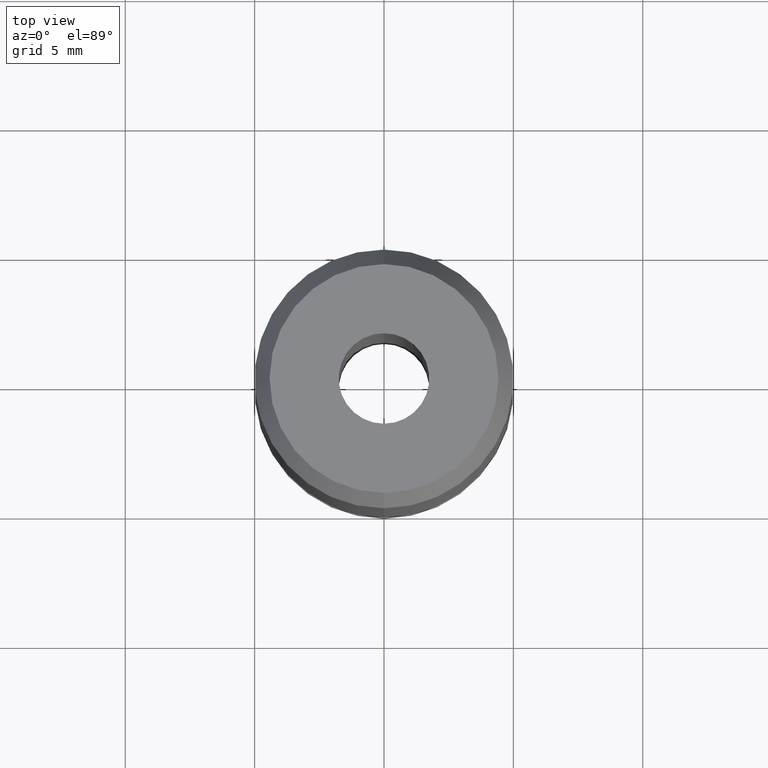
[diagram: clean part render]
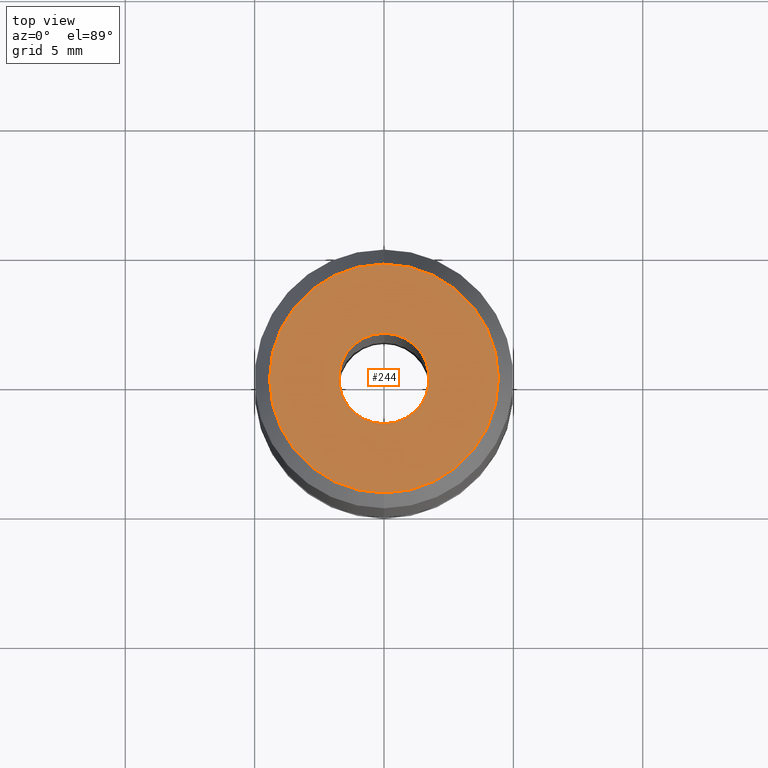
[diagram: same view with one face highlighted and labeled with its STEP entity id]
A machine part, top view. The second image highlights one B-rep face of the part: STEP entity #244.
In plain terms, the highlighted planar face has unit normal (0, -0, 1).
Its self-contained STEP definition (entity closure, byte-faithful):
#102=VERTEX_POINT('NONE',#272);
#182=EDGE_CURVE('NONE',#216,#250,#362,.T.);
#206=EDGE_CURVE('NONE',#102,#236,#391,.T.);
#216=VERTEX_POINT('NONE',#402);
#232=EDGE_CURVE('NONE',#236,#102,#420,.T.);
#236=VERTEX_POINT('NONE',#424);
#238=EDGE_CURVE('NONE',#250,#216,#426,.T.);
#244=ADVANCED_FACE('NONE',(#433,#434),#435,.T.);
#250=VERTEX_POINT('NONE',#441);
#272=CARTESIAN_POINT('',(-2.14306111918916E-016,1.75,24.5));
#362=CIRCLE('',#572,4.42264973081037);
#391=CIRCLE('',#607,1.75);
#402=CARTESIAN_POINT('',(-5.76951836509654E-016,4.42264973081037,24.5));
#420=CIRCLE('',#644,1.75);
#424=CARTESIAN_POINT('',(0.0,-1.75,24.5));
#426=CIRCLE('',#653,4.42264973081037);
#433=FACE_OUTER_BOUND('',#661,.T.);
#434=FACE_BOUND('',#662,.T.);
#435=PLANE('',#663);
#441=CARTESIAN_POINT('',(0.0,-4.42264973081037,24.5));
#572=AXIS2_PLACEMENT_3D('',#785,#786,#787);
#607=AXIS2_PLACEMENT_3D('',#830,#831,#832);
#644=AXIS2_PLACEMENT_3D('',#868,#869,#870);
#653=AXIS2_PLACEMENT_3D('',#872,#873,#874);
#661=EDGE_LOOP('',(#887,#888));
#662=EDGE_LOOP('',(#889,#890));
#663=AXIS2_PLACEMENT_3D('',#891,#892,#893);
#785=CARTESIAN_POINT('',(0.0,0.0,24.5));
#786=DIRECTION('',(0.0,0.0,-1.0));
#787=DIRECTION('',(0.0,-1.0,0.0));
#830=CARTESIAN_POINT('',(0.0,0.0,24.5));
#831=DIRECTION('',(0.0,0.0,-1.0));
#832=DIRECTION('',(0.0,-1.0,0.0));
#868=CARTESIAN_POINT('',(0.0,0.0,24.5));
#869=DIRECTION('',(0.0,0.0,-1.0));
#870=DIRECTION('',(0.0,-1.0,0.0));
#872=CARTESIAN_POINT('',(0.0,0.0,24.5));
#873=DIRECTION('',(0.0,0.0,-1.0));
#874=DIRECTION('',(0.0,-1.0,0.0));
#887=ORIENTED_EDGE('',*,*,#238,.F.);
#888=ORIENTED_EDGE('',*,*,#182,.F.);
#889=ORIENTED_EDGE('',*,*,#232,.T.);
#890=ORIENTED_EDGE('',*,*,#206,.T.);
#891=CARTESIAN_POINT('',(-4.42264973081037,0.0,24.5));
#892=DIRECTION('',(0.0,-0.0,1.0));
#893=DIRECTION('',(0.0,1.0,0.0));